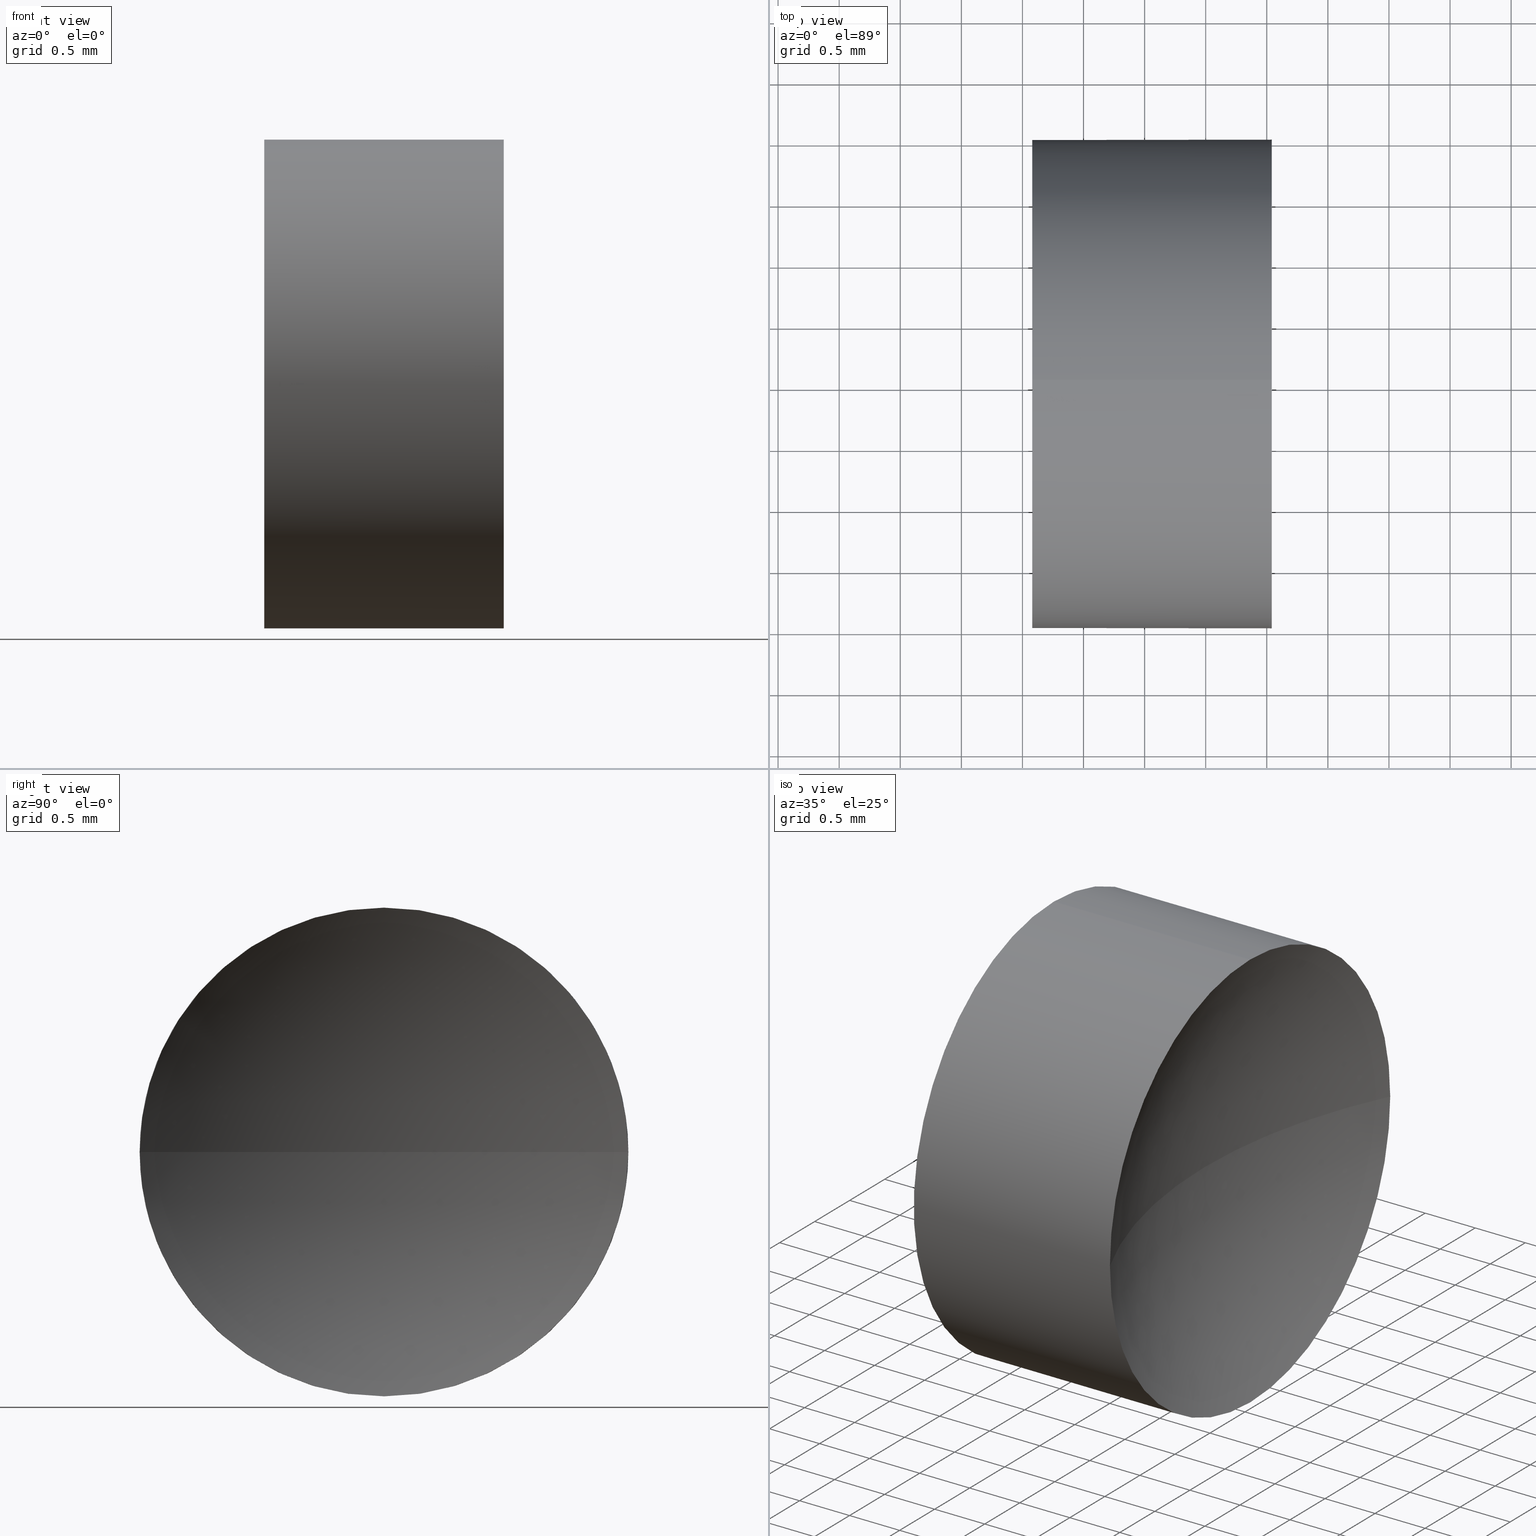
[diagram: canonical four-view strip — front | top / right | iso, engineering-drawing reading convention]
A machine part, canonical four-view strip (front | top / right | iso — engineering-drawing reading convention). The complete STEP part file that produces these views, byte-faithful:
ISO-10303-21;
HEADER;
FILE_DESCRIPTION (( 'STEP AP214' ),
    '1' );
FILE_NAME ('120241.STEP',
    '2019-06-24T05:34:24',
    ( '' ),
    ( '' ),
    'SwSTEP 2.0',
    'SolidWorks 2016',
    '' );
FILE_SCHEMA (( 'AUTOMOTIVE_DESIGN' ));
ENDSEC;

DATA;
#1 = PRODUCT_DEFINITION_CONTEXT ( 'detailed design', #149, 'design' ) ;
#2 = VERTEX_POINT ( 'NONE', #150 ) ;
#3 = SPHERICAL_SURFACE ( 'NONE', #101, 4.580000000000001000 ) ;
#4 = ORIENTED_EDGE ( 'NONE', *, *, #147, .F. ) ;
#5 = ADVANCED_FACE ( 'NONE', ( #128 ), #127, .T. ) ;
#6 = PRODUCT_CONTEXT ( 'NONE', #163, 'mechanical' ) ;
#7 = APPLICATION_PROTOCOL_DEFINITION ( 'draft international standard', 'automotive_design', 1998, #149 ) ;
#8 = DIRECTION ( 'NONE',  ( 0.0000000000000000000, 0.0000000000000000000, 1.000000000000000000 ) ) ;
#9 = LINE ( 'NONE', #110, #132 ) ;
#10 = AXIS2_PLACEMENT_3D ( 'NONE', #30, #183, #20 ) ;
#11 = CARTESIAN_POINT ( 'NONE',  ( 17.16059508478295800, 6.515563045701518300, 0.0000000000000000000 ) ) ;
#12 = DIRECTION ( 'NONE',  ( 0.0000000000000000000, 0.0000000000000000000, -1.000000000000000000 ) ) ;
#13 = COLOUR_RGB ( '',1.000000000000000000, 1.000000000000000000, 1.000000000000000000 ) ;
#14 = ORIENTED_EDGE ( 'NONE', *, *, #80, .F. ) ;
#15 = AXIS2_PLACEMENT_3D ( 'NONE', #141, #64, #139 ) ;
#16 = DIRECTION ( 'NONE',  ( 0.0000000000000000000, 0.0000000000000000000, 1.000000000000000000 ) ) ;
#17 = AXIS2_PLACEMENT_3D ( 'NONE', #29, #66, #115 ) ;
#18 = CIRCLE ( 'NONE', #168, 2.000000000000000900 ) ;
#19 = CARTESIAN_POINT ( 'NONE',  ( 11.08059508478296000, 6.515563045701520100, -2.000000000000000900 ) ) ;
#20 = DIRECTION ( 'NONE',  ( 0.0000000000000000000, 0.0000000000000000000, 1.000000000000000000 ) ) ;
#21 = SPHERICAL_SURFACE ( 'NONE', #17, 4.580000000000001000 ) ;
#22 = FILL_AREA_STYLE_COLOUR ( '', #13 ) ;
#23 = FACE_OUTER_BOUND ( 'NONE', #79, .T. ) ;
#24 = STYLED_ITEM ( 'NONE', ( #61 ), #108 ) ;
#25 = FILL_AREA_STYLE_COLOUR ( '', #136 ) ;
#26 = UNCERTAINTY_MEASURE_WITH_UNIT (LENGTH_MEASURE( 1.000000000000000100E-005 ), #104, 'distance_accuracy_value', 'NONE');
#27 = ORIENTED_EDGE ( 'NONE', *, *, #145, .F. ) ;
#28 = STYLED_ITEM ( 'NONE', ( #41 ), #89 ) ;
#29 = CARTESIAN_POINT ( 'NONE',  ( 17.16059508478295800, 6.515563045701518300, 0.0000000000000000000 ) ) ;
#30 = CARTESIAN_POINT ( 'NONE',  ( 13.04035237348548100, 6.515563045701520100, 0.0000000000000000000 ) ) ;
#31 =( GEOMETRIC_REPRESENTATION_CONTEXT ( 3 ) GLOBAL_UNCERTAINTY_ASSIGNED_CONTEXT ( ( #26 ) ) GLOBAL_UNIT_ASSIGNED_CONTEXT ( ( #104, #36, #172 ) ) REPRESENTATION_CONTEXT ( 'NONE', 'WORKASPACE' ) );
#32 = SURFACE_STYLE_FILL_AREA ( #174 ) ;
#33 = ORIENTED_EDGE ( 'NONE', *, *, #147, .T. ) ;
#34 = AXIS2_PLACEMENT_3D ( 'NONE', #107, #157, #96 ) ;
#35 = AXIS2_PLACEMENT_3D ( 'NONE', #125, #138, #40 ) ;
#36 =( NAMED_UNIT ( * ) PLANE_ANGLE_UNIT ( ) SI_UNIT ( $, .RADIAN. ) );
#37 = ORIENTED_EDGE ( 'NONE', *, *, #182, .T. ) ;
#38 = PRESENTATION_LAYER_ASSIGNMENT (  '', '', ( #24 ) ) ;
#39 = PRESENTATION_LAYER_ASSIGNMENT (  '', '', ( #28 ) ) ;
#40 = DIRECTION ( 'NONE',  ( 0.0000000000000000000, 0.0000000000000000000, 1.000000000000000000 ) ) ;
#41 = PRESENTATION_STYLE_ASSIGNMENT (( #143 ) ) ;
#42 = VERTEX_POINT ( 'NONE', #93 ) ;
#43 = PLANE ( 'NONE',  #77 ) ;
#44 = MECHANICAL_DESIGN_GEOMETRIC_PRESENTATION_REPRESENTATION (  '', ( #24 ), #135 ) ;
#45 = DIRECTION ( 'NONE',  ( 1.000000000000000000, 0.0000000000000000000, 0.0000000000000000000 ) ) ;
#46 = FACE_OUTER_BOUND ( 'NONE', #186, .T. ) ;
#47 = ORIENTED_EDGE ( 'NONE', *, *, #145, .T. ) ;
#48 = CIRCLE ( 'NONE', #184, 2.000000000000000900 ) ;
#49 = EDGE_CURVE ( 'NONE', #170, #58, #120, .T. ) ;
#50 = CIRCLE ( 'NONE', #10, 2.000000000000000900 ) ;
#51 = ORIENTED_EDGE ( 'NONE', *, *, #173, .T. ) ;
#52 =( NAMED_UNIT ( * ) PLANE_ANGLE_UNIT ( ) SI_UNIT ( $, .RADIAN. ) );
#53 = LINE ( 'NONE', #83, #88 ) ;
#54 = CARTESIAN_POINT ( 'NONE',  ( 13.04035237348548100, 6.515563045701520100, 0.0000000000000000000 ) ) ;
#55 = CARTESIAN_POINT ( 'NONE',  ( 0.0000000000000000000, 0.0000000000000000000, 0.0000000000000000000 ) ) ;
#56 =( LENGTH_UNIT ( ) NAMED_UNIT ( * ) SI_UNIT ( .MILLI., .METRE. ) );
#57 = ADVANCED_FACE ( 'NONE', ( #46 ), #3, .F. ) ;
#58 = VERTEX_POINT ( 'NONE', #109 ) ;
#59 = DIRECTION ( 'NONE',  ( 0.0000000000000000000, 1.000000000000000000, 0.0000000000000000000 ) ) ;
#60 = CARTESIAN_POINT ( 'NONE',  ( 13.04035237348548100, 6.515563045701520100, 0.0000000000000000000 ) ) ;
#61 = PRESENTATION_STYLE_ASSIGNMENT (( #75 ) ) ;
#62 = VERTEX_POINT ( 'NONE', #129 ) ;
#63 = DIRECTION ( 'NONE',  ( 0.0000000000000000000, 0.0000000000000000000, -1.000000000000000000 ) ) ;
#64 = DIRECTION ( 'NONE',  ( -1.000000000000000000, -0.0000000000000000000, -0.0000000000000000000 ) ) ;
#65 = PRODUCT_DEFINITION_FORMATION_WITH_SPECIFIED_SOURCE ( '�κ�', '', #148, .NOT_KNOWN. ) ;
#66 = DIRECTION ( 'NONE',  ( 0.0000000000000000000, 0.0000000000000000000, -1.000000000000000000 ) ) ;
#67 = ORIENTED_EDGE ( 'NONE', *, *, #103, .F. ) ;
#68 = ORIENTED_EDGE ( 'NONE', *, *, #118, .T. ) ;
#69 = PRODUCT_DEFINITION ( 'δ֪', '', #65, #1 ) ;
#70 = ADVANCED_FACE ( 'NONE', ( #185 ), #85, .T. ) ;
#71 = SURFACE_STYLE_FILL_AREA ( #158 ) ;
#72 = ORIENTED_EDGE ( 'NONE', *, *, #173, .F. ) ;
#73 = DIRECTION ( 'NONE',  ( -1.000000000000000000, -0.0000000000000000000, -0.0000000000000000000 ) ) ;
#74 = ADVANCED_FACE ( 'NONE', ( #162 ), #21, .F. ) ;
#75 = SURFACE_STYLE_USAGE ( .BOTH. , #134 ) ;
#76 = CARTESIAN_POINT ( 'NONE',  ( 10.57823596122213100, 6.515563045701520100, 0.0000000000000000000 ) ) ;
#77 = AXIS2_PLACEMENT_3D ( 'NONE', #98, #181, #63 ) ;
#78 = DIRECTION ( 'NONE',  ( 0.0000000000000000000, 0.0000000000000000000, 1.000000000000000000 ) ) ;
#79 = EDGE_LOOP ( 'NONE', ( #37, #51 ) ) ;
#80 = EDGE_CURVE ( 'NONE', #137, #170, #50, .T. ) ;
#81 = CIRCLE ( 'NONE', #82, 2.000000000000000900 ) ;
#82 = AXIS2_PLACEMENT_3D ( 'NONE', #95, #73, #8 ) ;
#83 = CARTESIAN_POINT ( 'NONE',  ( 10.57823596122213100, 6.515563045701520100, 2.000000000000000900 ) ) ;
#84 = DIRECTION ( 'NONE',  ( 0.0000000000000000000, 1.000000000000000000, 1.224646799147353500E-016 ) ) ;
#85 = CYLINDRICAL_SURFACE ( 'NONE', #140, 2.000000000000000900 ) ;
#86 =( NAMED_UNIT ( * ) SI_UNIT ( $, .STERADIAN. ) SOLID_ANGLE_UNIT ( ) );
#87 = ORIENTED_EDGE ( 'NONE', *, *, #131, .F. ) ;
#88 = VECTOR ( 'NONE', #156, 1000.000000000000000 ) ;
#89 = MANIFOLD_SOLID_BREP ( '��ת1', #113 ) ;
#90 = APPLICATION_PROTOCOL_DEFINITION ( 'draft international standard', 'automotive_design', 1998, #163 ) ;
#91 =( NAMED_UNIT ( * ) SI_UNIT ( $, .STERADIAN. ) SOLID_ANGLE_UNIT ( ) );
#92 = CIRCLE ( 'NONE', #34, 4.580000000000001000 ) ;
#93 = CARTESIAN_POINT ( 'NONE',  ( 11.08059508478296000, 6.515563045701520100, 2.000000000000000900 ) ) ;
#94 = DIRECTION ( 'NONE',  ( 0.0000000000000000000, 0.0000000000000000000, 1.000000000000000000 ) ) ;
#95 = CARTESIAN_POINT ( 'NONE',  ( 11.08059508478296000, 6.515563045701520100, 0.0000000000000000000 ) ) ;
#96 = DIRECTION ( 'NONE',  ( 1.000000000000000000, 0.0000000000000000000, 0.0000000000000000000 ) ) ;
#97 = ORIENTED_EDGE ( 'NONE', *, *, #49, .T. ) ;
#98 = CARTESIAN_POINT ( 'NONE',  ( 11.08059508478296000, 6.515563045701520100, 0.0000000000000000000 ) ) ;
#99 = DIRECTION ( 'NONE',  ( 0.0000000000000000000, 0.0000000000000000000, 1.000000000000000000 ) ) ;
#100 = SURFACE_SIDE_STYLE ('',( #71 ) ) ;
#101 = AXIS2_PLACEMENT_3D ( 'NONE', #11, #12, #59 ) ;
#102 = ORIENTED_EDGE ( 'NONE', *, *, #131, .T. ) ;
#103 = EDGE_CURVE ( 'NONE', #62, #137, #18, .T. ) ;
#104 =( LENGTH_UNIT ( ) NAMED_UNIT ( * ) SI_UNIT ( .MILLI., .METRE. ) );
#105 = PRODUCT_DEFINITION_SHAPE ( 'NONE', 'NONE',  #69 ) ;
#106 = ORIENTED_EDGE ( 'NONE', *, *, #80, .T. ) ;
#107 = CARTESIAN_POINT ( 'NONE',  ( 17.16059508478295800, 6.515563045701518300, 0.0000000000000000000 ) ) ;
#108 = ADVANCED_BREP_SHAPE_REPRESENTATION ( '120241', ( #89, #124 ), #31 ) ;
#109 = CARTESIAN_POINT ( 'NONE',  ( 13.04035237348548100, 8.515563045701522800, 0.0000000000000000000 ) ) ;
#110 = CARTESIAN_POINT ( 'NONE',  ( 10.57823596122213100, 6.515563045701520100, -2.000000000000000900 ) ) ;
#111 = ORIENTED_EDGE ( 'NONE', *, *, #49, .F. ) ;
#112 = EDGE_LOOP ( 'NONE', ( #14, #102, #27, #111 ) ) ;
#113 = CLOSED_SHELL ( 'NONE', ( #5, #74, #57, #70, #161 ) ) ;
#114 = EDGE_CURVE ( 'NONE', #62, #175, #9, .T. ) ;
#115 = DIRECTION ( 'NONE',  ( 0.0000000000000000000, 1.000000000000000000, 0.0000000000000000000 ) ) ;
#116 = ORIENTED_EDGE ( 'NONE', *, *, #114, .F. ) ;
#117 = SHAPE_DEFINITION_REPRESENTATION ( #105, #108 ) ;
#118 = EDGE_CURVE ( 'NONE', #58, #62, #48, .T. ) ;
#119 = AXIS2_PLACEMENT_3D ( 'NONE', #178, #152, #84 ) ;
#120 = CIRCLE ( 'NONE', #151, 2.000000000000000900 ) ;
#121 = ORIENTED_EDGE ( 'NONE', *, *, #103, .T. ) ;
#122 =( LENGTH_UNIT ( ) NAMED_UNIT ( * ) SI_UNIT ( .MILLI., .METRE. ) );
#123 = CIRCLE ( 'NONE', #15, 2.000000000000000900 ) ;
#124 = AXIS2_PLACEMENT_3D ( 'NONE', #55, #99, #45 ) ;
#125 = CARTESIAN_POINT ( 'NONE',  ( 10.57823596122213100, 6.515563045701520100, 0.0000000000000000000 ) ) ;
#126 = MECHANICAL_DESIGN_GEOMETRIC_PRESENTATION_REPRESENTATION (  '', ( #28 ), #133 ) ;
#127 = CYLINDRICAL_SURFACE ( 'NONE', #35, 2.000000000000000900 ) ;
#128 = FACE_OUTER_BOUND ( 'NONE', #180, .T. ) ;
#129 = CARTESIAN_POINT ( 'NONE',  ( 13.04035237348548100, 6.515563045701520100, -2.000000000000000900 ) ) ;
#130 = DIRECTION ( 'NONE',  ( -1.000000000000000000, -0.0000000000000000000, -0.0000000000000000000 ) ) ;
#131 = EDGE_CURVE ( 'NONE', #137, #2, #155, .T. ) ;
#132 = VECTOR ( 'NONE', #165, 1000.000000000000000 ) ;
#133 =( GEOMETRIC_REPRESENTATION_CONTEXT ( 3 ) GLOBAL_UNCERTAINTY_ASSIGNED_CONTEXT ( ( #142 ) ) GLOBAL_UNIT_ASSIGNED_CONTEXT ( ( #56, #169, #86 ) ) REPRESENTATION_CONTEXT ( 'NONE', 'WORKASPACE' ) );
#134 = SURFACE_SIDE_STYLE ('',( #32 ) ) ;
#135 =( GEOMETRIC_REPRESENTATION_CONTEXT ( 3 ) GLOBAL_UNCERTAINTY_ASSIGNED_CONTEXT ( ( #171 ) ) GLOBAL_UNIT_ASSIGNED_CONTEXT ( ( #122, #52, #91 ) ) REPRESENTATION_CONTEXT ( 'NONE', 'WORKASPACE' ) );
#136 = COLOUR_RGB ( '',1.000000000000000000, 1.000000000000000000, 1.000000000000000000 ) ;
#137 = VERTEX_POINT ( 'NONE', #179 ) ;
#138 = DIRECTION ( 'NONE',  ( -1.000000000000000000, -0.0000000000000000000, -0.0000000000000000000 ) ) ;
#139 = DIRECTION ( 'NONE',  ( 0.0000000000000000000, 0.0000000000000000000, 1.000000000000000000 ) ) ;
#140 = AXIS2_PLACEMENT_3D ( 'NONE', #76, #177, #94 ) ;
#141 = CARTESIAN_POINT ( 'NONE',  ( 11.08059508478296000, 6.515563045701520100, 0.0000000000000000000 ) ) ;
#142 = UNCERTAINTY_MEASURE_WITH_UNIT (LENGTH_MEASURE( 1.000000000000000100E-005 ), #56, 'distance_accuracy_value', 'NONE');
#143 = SURFACE_STYLE_USAGE ( .BOTH. , #100 ) ;
#144 = ORIENTED_EDGE ( 'NONE', *, *, #118, .F. ) ;
#145 = EDGE_CURVE ( 'NONE', #58, #2, #92, .T. ) ;
#146 = ORIENTED_EDGE ( 'NONE', *, *, #114, .T. ) ;
#147 = EDGE_CURVE ( 'NONE', #170, #42, #53, .T. ) ;
#148 = PRODUCT ( '120241', '120241', '', ( #6 ) ) ;
#149 = APPLICATION_CONTEXT ( 'automotive_design' ) ;
#150 = CARTESIAN_POINT ( 'NONE',  ( 12.58059508478295800, 6.515563045701518300, 0.0000000000000000000 ) ) ;
#151 = AXIS2_PLACEMENT_3D ( 'NONE', #176, #164, #78 ) ;
#152 = DIRECTION ( 'NONE',  ( 0.0000000000000000000, 1.224646799147353200E-016, -1.000000000000000000 ) ) ;
#153 = ORIENTED_EDGE ( 'NONE', *, *, #182, .F. ) ;
#154 = DIRECTION ( 'NONE',  ( 0.0000000000000000000, 0.0000000000000000000, 1.000000000000000000 ) ) ;
#155 = CIRCLE ( 'NONE', #119, 4.580000000000000100 ) ;
#156 = DIRECTION ( 'NONE',  ( -1.000000000000000000, -0.0000000000000000000, -0.0000000000000000000 ) ) ;
#157 = DIRECTION ( 'NONE',  ( 0.0000000000000000000, 0.0000000000000000000, 1.000000000000000000 ) ) ;
#158 = FILL_AREA_STYLE ('',( #22 ) ) ;
#159 = EDGE_LOOP ( 'NONE', ( #116, #121, #106, #33, #72 ) ) ;
#160 = PRODUCT_RELATED_PRODUCT_CATEGORY ( 'part', '', ( #148 ) ) ;
#161 = ADVANCED_FACE ( 'NONE', ( #23 ), #43, .F. ) ;
#162 = FACE_OUTER_BOUND ( 'NONE', #112, .T. ) ;
#163 = APPLICATION_CONTEXT ( 'automotive_design' ) ;
#164 = DIRECTION ( 'NONE',  ( -1.000000000000000000, -0.0000000000000000000, -0.0000000000000000000 ) ) ;
#165 = DIRECTION ( 'NONE',  ( -1.000000000000000000, -0.0000000000000000000, -0.0000000000000000000 ) ) ;
#166 = DIRECTION ( 'NONE',  ( -1.000000000000000000, -0.0000000000000000000, -0.0000000000000000000 ) ) ;
#167 = CARTESIAN_POINT ( 'NONE',  ( 13.04035237348548100, 6.515563045701520100, 2.000000000000000900 ) ) ;
#168 = AXIS2_PLACEMENT_3D ( 'NONE', #54, #166, #16 ) ;
#169 =( NAMED_UNIT ( * ) PLANE_ANGLE_UNIT ( ) SI_UNIT ( $, .RADIAN. ) );
#170 = VERTEX_POINT ( 'NONE', #167 ) ;
#171 = UNCERTAINTY_MEASURE_WITH_UNIT (LENGTH_MEASURE( 1.000000000000000100E-005 ), #122, 'distance_accuracy_value', 'NONE');
#172 =( NAMED_UNIT ( * ) SI_UNIT ( $, .STERADIAN. ) SOLID_ANGLE_UNIT ( ) );
#173 = EDGE_CURVE ( 'NONE', #175, #42, #123, .T. ) ;
#174 = FILL_AREA_STYLE ('',( #25 ) ) ;
#175 = VERTEX_POINT ( 'NONE', #19 ) ;
#176 = CARTESIAN_POINT ( 'NONE',  ( 13.04035237348548100, 6.515563045701520100, 0.0000000000000000000 ) ) ;
#177 = DIRECTION ( 'NONE',  ( -1.000000000000000000, -0.0000000000000000000, -0.0000000000000000000 ) ) ;
#178 = CARTESIAN_POINT ( 'NONE',  ( 17.16059508478295800, 6.515563045701518300, 0.0000000000000000000 ) ) ;
#179 = CARTESIAN_POINT ( 'NONE',  ( 13.04035237348548100, 4.515563045701515700, -2.449293598294708900E-016 ) ) ;
#180 = EDGE_LOOP ( 'NONE', ( #68, #146, #153, #4, #97 ) ) ;
#181 = DIRECTION ( 'NONE',  ( 1.000000000000000000, 0.0000000000000000000, 0.0000000000000000000 ) ) ;
#182 = EDGE_CURVE ( 'NONE', #42, #175, #81, .T. ) ;
#183 = DIRECTION ( 'NONE',  ( -1.000000000000000000, -0.0000000000000000000, -0.0000000000000000000 ) ) ;
#184 = AXIS2_PLACEMENT_3D ( 'NONE', #60, #130, #154 ) ;
#185 = FACE_OUTER_BOUND ( 'NONE', #159, .T. ) ;
#186 = EDGE_LOOP ( 'NONE', ( #87, #67, #144, #47 ) ) ;
ENDSEC;
END-ISO-10303-21;
